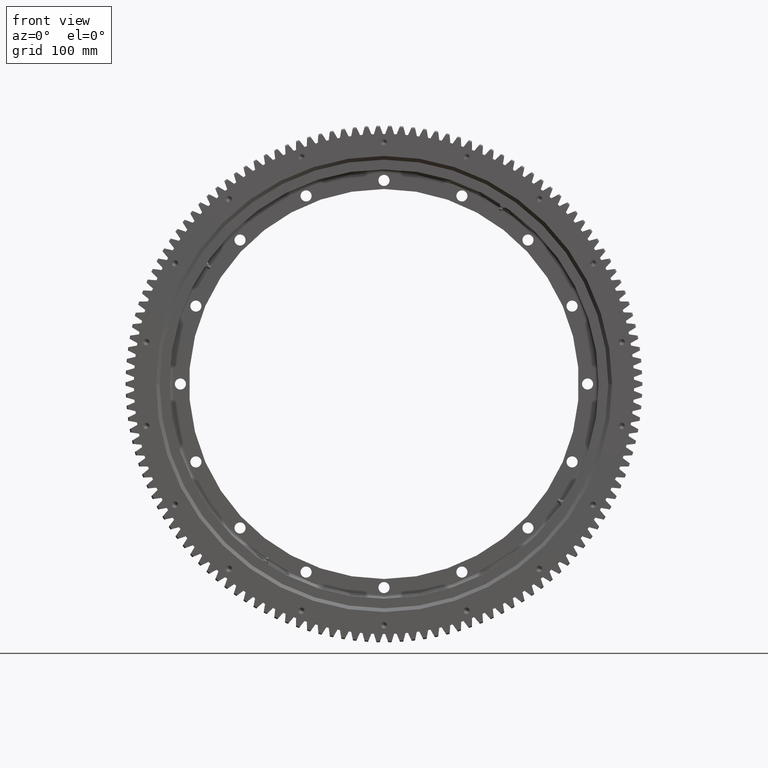
[diagram: clean part render]
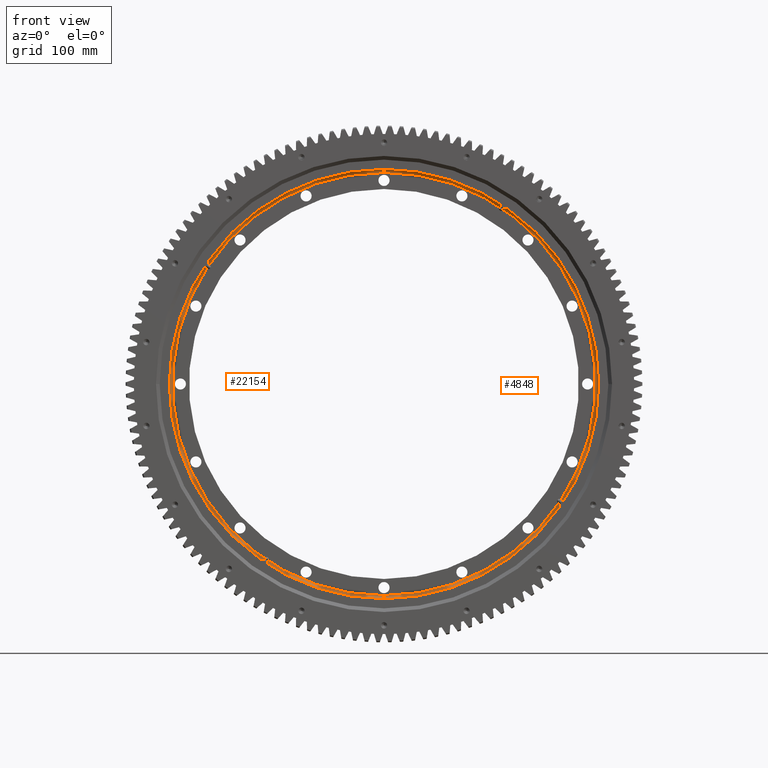
[diagram: same view with one multi-face feature highlighted, each face labeled with its STEP entity id]
A machine part, front view. The highlighted faces form ONE feature: a constant-radius fillet chain: 2 tangent blend faces with common blend radius 5 mm. The faces share edges in the B-rep.
Their STEP definitions:
[1] entity #22154 (Torus):
#98 = DIRECTION ( 'NONE',  ( 0.0000000000000000000, 5.467609809669019400E-017, 1.000000000000000000 ) ) ;
#640 = DIRECTION ( 'NONE',  ( 0.0000000000000000000, 5.298555410421252900E-017, 1.000000000000000000 ) ) ;
#2579 = VERTEX_POINT ( 'NONE', #4220 ) ;
#2681 = AXIS2_PLACEMENT_3D ( 'NONE', #14721, #32159, #640 ) ;
#4066 = ORIENTED_EDGE ( 'NONE', *, *, #33792, .T. ) ;
#4220 = CARTESIAN_POINT ( 'NONE',  ( 0.0000000000000000000, 10.99999999999998000, 349.0000000000000000 ) ) ;
#7008 = AXIS2_PLACEMENT_3D ( 'NONE', #20315, #23201, #27051 ) ;
#9455 = CIRCLE ( 'NONE', #7008, 5.000000000000004400 ) ;
#10784 = DIRECTION ( 'NONE',  ( 1.000000000000000000, 6.488858923477276700E-033, 1.224646799147353200E-016 ) ) ;
#10942 = ORIENTED_EDGE ( 'NONE', *, *, #16013, .F. ) ;
#10999 = VERTEX_POINT ( 'NONE', #32134 ) ;
#11356 = TOROIDAL_SURFACE ( 'NONE', #2681, 344.0000000000000000, 5.000000000000000000 ) ;
#12380 = ORIENTED_EDGE ( 'NONE', *, *, #34843, .F. ) ;
#13376 = CIRCLE ( 'NONE', #14407, 5.000000000000004400 ) ;
#14407 = AXIS2_PLACEMENT_3D ( 'NONE', #27733, #10784, #30503 ) ;
#14721 = CARTESIAN_POINT ( 'NONE',  ( 0.0000000000000000000, 10.99999999999996100, -4.190188333128738200E-015 ) ) ;
#14749 = EDGE_CURVE ( 'NONE', #2579, #31272, #9455, .T. ) ;
#16013 = EDGE_CURVE ( 'NONE', #31272, #10999, #26340, .T. ) ;
#17149 = DIRECTION ( 'NONE',  ( -0.0000000000000000000, 1.000000000000000000, -5.298555410421252300E-017 ) ) ;
#18937 = FACE_OUTER_BOUND ( 'NONE', #25318, .T. ) ;
#20315 = CARTESIAN_POINT ( 'NONE',  ( 0.0000000000000000000, 10.99999999999998000, 344.0000000000000000 ) ) ;
#21133 = AXIS2_PLACEMENT_3D ( 'NONE', #33858, #17149, #98 ) ;
#21299 = CARTESIAN_POINT ( 'NONE',  ( 0.0000000000000000000, 15.99999999999997700, 344.0000000000000000 ) ) ;
#21752 = CIRCLE ( 'NONE', #21133, 349.0000000000000000 ) ;
#22154 = ADVANCED_FACE ( 'NONE', ( #18937 ), #11356, .F. ) ;
#22261 = CARTESIAN_POINT ( 'NONE',  ( 4.274017329024262400E-014, 10.99999999999994100, -349.0000000000000000 ) ) ;
#23201 = DIRECTION ( 'NONE',  ( -1.000000000000000000, 0.0000000000000000000, 0.0000000000000000000 ) ) ;
#24706 = VERTEX_POINT ( 'NONE', #22261 ) ;
#25318 = EDGE_LOOP ( 'NONE', ( #12380, #4066, #10942, #31588 ) ) ;
#26340 = CIRCLE ( 'NONE', #26999, 344.0000000000000000 ) ;
#26999 = AXIS2_PLACEMENT_3D ( 'NONE', #33023, #32396, #28191 ) ;
#27051 = DIRECTION ( 'NONE',  ( 0.0000000000000000000, 0.0000000000000000000, 1.000000000000000000 ) ) ;
#27733 = CARTESIAN_POINT ( 'NONE',  ( 4.212784989066894800E-014, 10.99999999999994100, -344.0000000000000000 ) ) ;
#28191 = DIRECTION ( 'NONE',  ( 0.0000000000000000000, 5.042800802258159900E-017, 1.000000000000000000 ) ) ;
#30503 = DIRECTION ( 'NONE',  ( 1.224646799147349500E-016, 0.0000000000000000000, -1.000000000000000000 ) ) ;
#31272 = VERTEX_POINT ( 'NONE', #21299 ) ;
#31588 = ORIENTED_EDGE ( 'NONE', *, *, #14749, .F. ) ;
#32134 = CARTESIAN_POINT ( 'NONE',  ( 4.243401159045578600E-014, 15.99999999999994100, -344.0000000000000000 ) ) ;
#32159 = DIRECTION ( 'NONE',  ( -0.0000000000000000000, 1.000000000000000000, -5.298555410421252300E-017 ) ) ;
#32396 = DIRECTION ( 'NONE',  ( 0.0000000000000000000, -1.000000000000000000, 5.298555410421252300E-017 ) ) ;
#33023 = CARTESIAN_POINT ( 'NONE',  ( 0.0000000000000000000, 15.99999999999995900, -4.455116103649800300E-015 ) ) ;
#33792 = EDGE_CURVE ( 'NONE', #24706, #10999, #13376, .T. ) ;
#33858 = CARTESIAN_POINT ( 'NONE',  ( 0.0000000000000000000, 10.99999999999996100, -4.190188333128738200E-015 ) ) ;
#34843 = EDGE_CURVE ( 'NONE', #24706, #2579, #21752, .T. ) ;
[2] entity #4848 (Torus):
#885 = AXIS2_PLACEMENT_3D ( 'NONE', #26006, #25971, #25957 ) ;
#2220 = CIRCLE ( 'NONE', #885, 349.0000000000000000 ) ;
#2579 = VERTEX_POINT ( 'NONE', #4220 ) ;
#4220 = CARTESIAN_POINT ( 'NONE',  ( 0.0000000000000000000, 10.99999999999998000, 349.0000000000000000 ) ) ;
#4848 = ADVANCED_FACE ( 'NONE', ( #24543 ), #8522, .F. ) ;
#6728 = EDGE_CURVE ( 'NONE', #2579, #24706, #2220, .T. ) ;
#7008 = AXIS2_PLACEMENT_3D ( 'NONE', #20315, #23201, #27051 ) ;
#7848 = DIRECTION ( 'NONE',  ( 0.0000000000000000000, -1.000000000000000000, 5.298555410421252300E-017 ) ) ;
#8522 = TOROIDAL_SURFACE ( 'NONE', #14848, 344.0000000000000000, 5.000000000000000000 ) ;
#8632 = DIRECTION ( 'NONE',  ( -0.0000000000000000000, 1.000000000000000000, -5.298555410421252300E-017 ) ) ;
#8887 = EDGE_LOOP ( 'NONE', ( #16482, #13585, #13435, #32849 ) ) ;
#9089 = DIRECTION ( 'NONE',  ( 0.0000000000000000000, 5.298555410421252900E-017, 1.000000000000000000 ) ) ;
#9455 = CIRCLE ( 'NONE', #7008, 5.000000000000004400 ) ;
#10784 = DIRECTION ( 'NONE',  ( 1.000000000000000000, 6.488858923477276700E-033, 1.224646799147353200E-016 ) ) ;
#10999 = VERTEX_POINT ( 'NONE', #32134 ) ;
#13376 = CIRCLE ( 'NONE', #14407, 5.000000000000004400 ) ;
#13435 = ORIENTED_EDGE ( 'NONE', *, *, #14749, .T. ) ;
#13585 = ORIENTED_EDGE ( 'NONE', *, *, #6728, .F. ) ;
#14407 = AXIS2_PLACEMENT_3D ( 'NONE', #27733, #10784, #30503 ) ;
#14749 = EDGE_CURVE ( 'NONE', #2579, #31272, #9455, .T. ) ;
#14848 = AXIS2_PLACEMENT_3D ( 'NONE', #18258, #8632, #9089 ) ;
#16482 = ORIENTED_EDGE ( 'NONE', *, *, #33792, .F. ) ;
#18258 = CARTESIAN_POINT ( 'NONE',  ( 0.0000000000000000000, 10.99999999999996100, -4.190188333128738200E-015 ) ) ;
#19725 = AXIS2_PLACEMENT_3D ( 'NONE', #24888, #7848, #27704 ) ;
#20315 = CARTESIAN_POINT ( 'NONE',  ( 0.0000000000000000000, 10.99999999999998000, 344.0000000000000000 ) ) ;
#21299 = CARTESIAN_POINT ( 'NONE',  ( 0.0000000000000000000, 15.99999999999997700, 344.0000000000000000 ) ) ;
#22261 = CARTESIAN_POINT ( 'NONE',  ( 4.274017329024262400E-014, 10.99999999999994100, -349.0000000000000000 ) ) ;
#23201 = DIRECTION ( 'NONE',  ( -1.000000000000000000, 0.0000000000000000000, 0.0000000000000000000 ) ) ;
#24543 = FACE_OUTER_BOUND ( 'NONE', #8887, .T. ) ;
#24706 = VERTEX_POINT ( 'NONE', #22261 ) ;
#24888 = CARTESIAN_POINT ( 'NONE',  ( 0.0000000000000000000, 15.99999999999995900, -4.455116103649800300E-015 ) ) ;
#25957 = DIRECTION ( 'NONE',  ( 0.0000000000000000000, 5.467609809669019400E-017, 1.000000000000000000 ) ) ;
#25971 = DIRECTION ( 'NONE',  ( -0.0000000000000000000, 1.000000000000000000, -5.298555410421252300E-017 ) ) ;
#26006 = CARTESIAN_POINT ( 'NONE',  ( 0.0000000000000000000, 10.99999999999996100, -4.190188333128738200E-015 ) ) ;
#27051 = DIRECTION ( 'NONE',  ( 0.0000000000000000000, 0.0000000000000000000, 1.000000000000000000 ) ) ;
#27704 = DIRECTION ( 'NONE',  ( 0.0000000000000000000, 5.042800802258159900E-017, 1.000000000000000000 ) ) ;
#27733 = CARTESIAN_POINT ( 'NONE',  ( 4.212784989066894800E-014, 10.99999999999994100, -344.0000000000000000 ) ) ;
#30503 = DIRECTION ( 'NONE',  ( 1.224646799147349500E-016, 0.0000000000000000000, -1.000000000000000000 ) ) ;
#30869 = CIRCLE ( 'NONE', #19725, 344.0000000000000000 ) ;
#31272 = VERTEX_POINT ( 'NONE', #21299 ) ;
#32134 = CARTESIAN_POINT ( 'NONE',  ( 4.243401159045578600E-014, 15.99999999999994100, -344.0000000000000000 ) ) ;
#32849 = ORIENTED_EDGE ( 'NONE', *, *, #35255, .F. ) ;
#33792 = EDGE_CURVE ( 'NONE', #24706, #10999, #13376, .T. ) ;
#35255 = EDGE_CURVE ( 'NONE', #10999, #31272, #30869, .T. ) ;